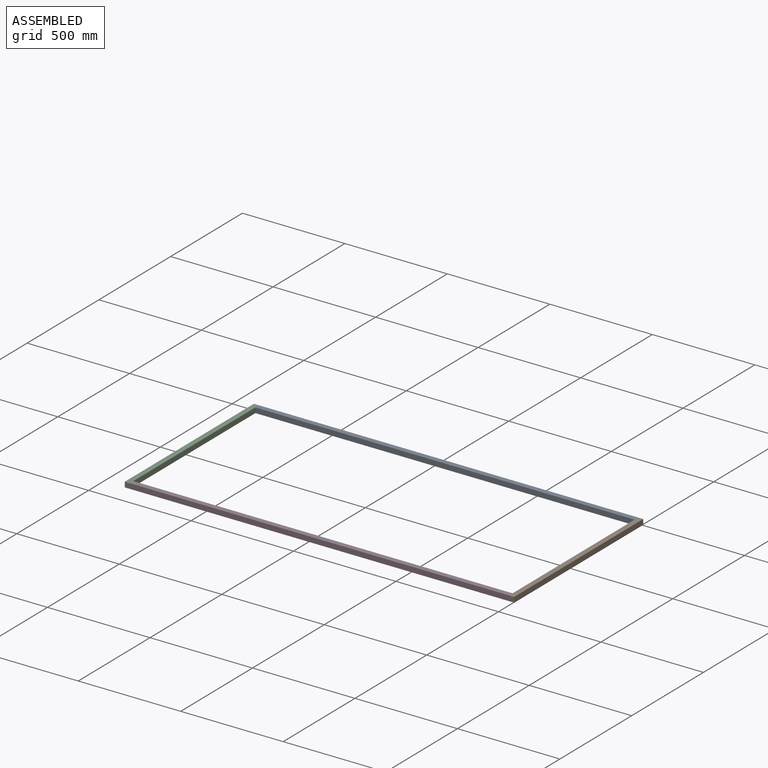
[diagram: assembled view]
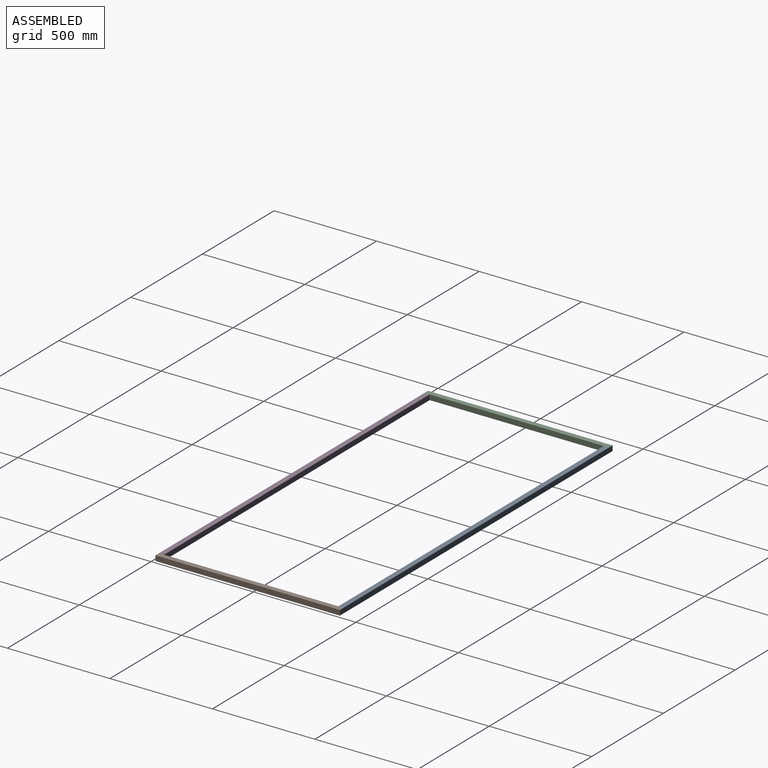
[diagram: assembled view, second angle]
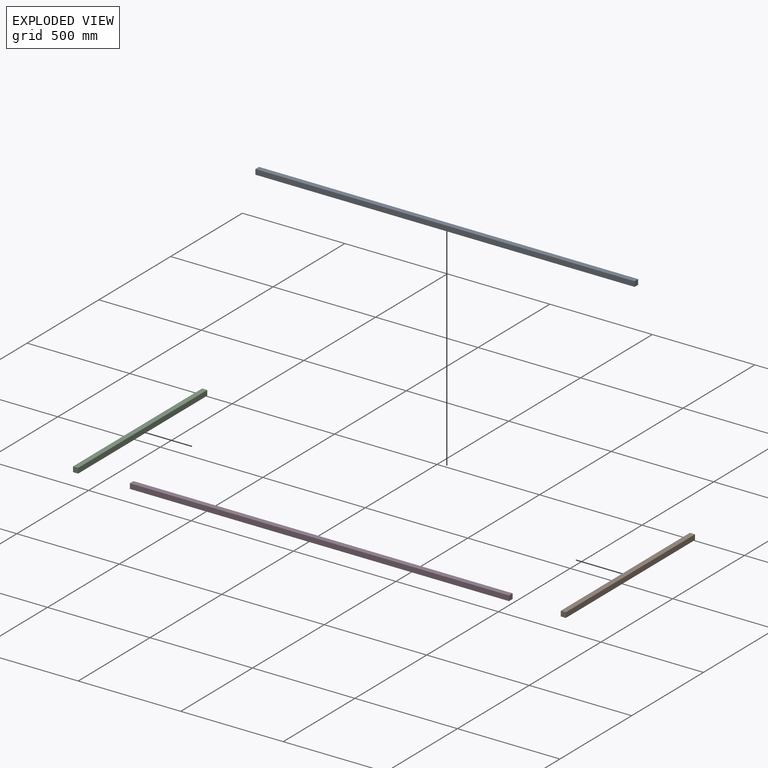
[diagram: exploded view]
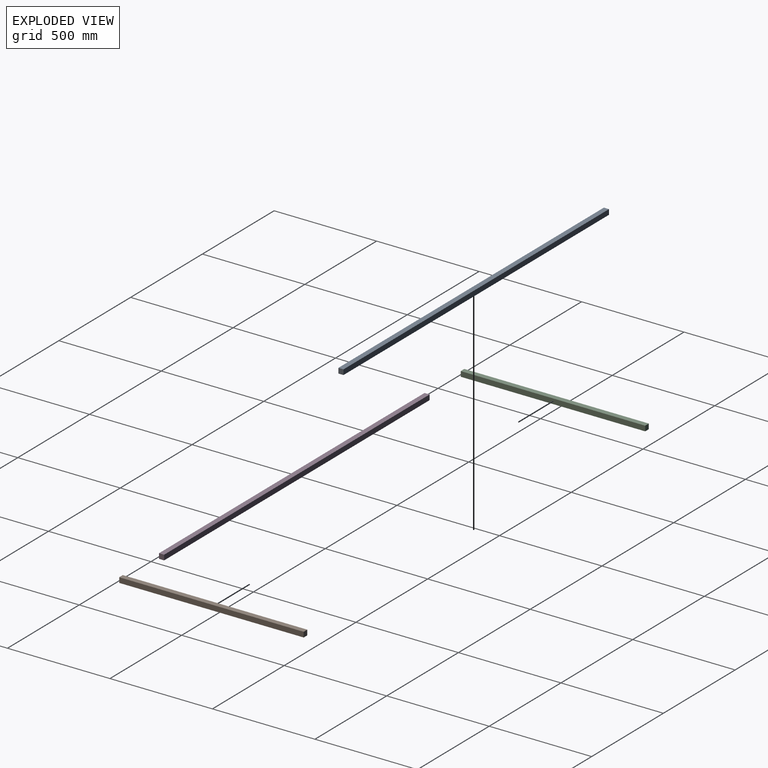
[diagram: exploded view, second angle]
ASSEMBLY  parts=4 mates=3
PART A: 6 faces, bbox 1850x25x25 mm
  f0: plane 1850x25mm, normal (0,-1,0), area 46250mm2, adj f1,f3,f4,f5
  f1: plane 25x25mm, normal (1,0,0), area 625mm2, adj f0,f2,f4,f5
  f2: plane 1850x25mm, normal (0,1,0), area 46250mm2, adj f1,f3,f4,f5
  f3: plane 25x25mm, normal (-1,0,0), area 625mm2, adj f0,f2,f4,f5
  f4: plane 1850x25mm, normal (0,0,1), area 46250mm2, adj f0,f1,f2,f3
  f5: plane 1850x25mm, normal (0,0,-1), area 46250mm2, adj f0,f1,f2,f3
PART B: 6 faces, bbox 25x900x25 mm
  f0: plane 900x25mm, normal (-1,0,0), area 22500mm2, adj f1,f3,f4,f5
  f1: plane 25x25mm, normal (0,-1,0), area 625mm2, adj f0,f2,f4,f5
  f2: plane 900x25mm, normal (1,0,0), area 22500mm2, adj f1,f3,f4,f5
  f3: plane 25x25mm, normal (0,1,0), area 625mm2, adj f0,f2,f4,f5
  f4: plane 900x25mm, normal (0,0,1), area 22500mm2, adj f0,f1,f2,f3
  f5: plane 900x25mm, normal (0,0,-1), area 22500mm2, adj f0,f1,f2,f3
PART C: 6 faces, bbox 25x900x25 mm
  f0: plane 900x25mm, normal (-1,0,0), area 22500mm2, adj f1,f3,f4,f5
  f1: plane 25x25mm, normal (0,-1,0), area 625mm2, adj f0,f2,f4,f5
  f2: plane 900x25mm, normal (1,0,0), area 22500mm2, adj f1,f3,f4,f5
  f3: plane 25x25mm, normal (0,1,0), area 625mm2, adj f0,f2,f4,f5
  f4: plane 900x25mm, normal (0,0,1), area 22500mm2, adj f0,f1,f2,f3
  f5: plane 900x25mm, normal (0,0,-1), area 22500mm2, adj f0,f1,f2,f3
PART D: 6 faces, bbox 1850x25x25 mm
  f0: plane 1850x25mm, normal (0,1,0), area 46250mm2, adj f1,f3,f4,f5
  f1: plane 25x25mm, normal (-1,0,0), area 625mm2, adj f0,f2,f4,f5
  f2: plane 1850x25mm, normal (0,-1,0), area 46250mm2, adj f1,f3,f4,f5
  f3: plane 25x25mm, normal (1,0,0), area 625mm2, adj f0,f2,f4,f5
  f4: plane 1850x25mm, normal (0,0,1), area 46250mm2, adj f0,f1,f2,f3
  f5: plane 1850x25mm, normal (0,0,-1), area 46250mm2, adj f0,f1,f2,f3
PLACE A t=(-858.91,-449.43,-13.45)mm
PLACE B t=(-858.91,-449.43,-13.45)mm
PLACE C t=(-858.91,-449.43,-13.45)mm
PLACE D t=(-858.91,-449.43,-13.45)mm
MATE fastened C.f4 <-> D.f4  axis (0,0,1) through (-833.91,-449.43,11.55)mm
MATE fastened C.f4 <-> A.f4  axis (0,0,1) through (-833.91,450.57,11.55)mm
MATE fastened B.f4 <-> D.f4  axis (0,0,1) through (1016.09,-449.43,11.55)mm
